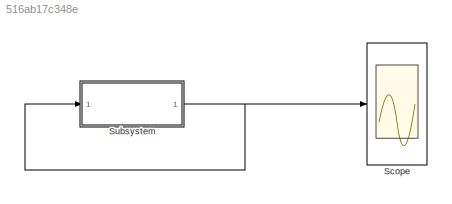
MODEL slx_516ab17c348e
KIND model
BLOCK [Scope] Scope
  Floating = off
  MaxDataPoints = 50000
  NumInputPorts = 1
  Ports = [1]
  ShowLegends = off
  ZoomMode = xonly
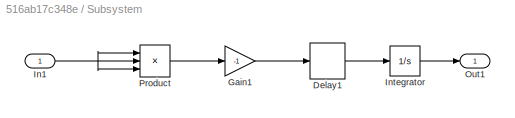
BLOCK [SubSystem] Subsystem
  Ports = [1, 1]
  RequestExecContextInheritance = off
BLOCK [Delay] Subsystem/Delay1
  DelayLength = 1
  InputPortMap = u0
  Ports = [1, 1]
  SampleTime = 0.001
BLOCK [Gain] Subsystem/Gain1
  Gain = -1
  OutDataTypeStr = Inherit: Inherit via internal rule
  ParamDataTypeStr = Inherit: Inherit via internal rule
  SaturateOnIntegerOverflow = off
BLOCK [Inport] Subsystem/In1
  IconDisplay = Port number
BLOCK [Integrator] Subsystem/Integrator
  InitialCondition = 200
  Ports = [1, 1]
BLOCK [Outport] Subsystem/Out1
  IconDisplay = Port number
BLOCK [Product] Subsystem/Product
  InputSameDT = off
  Inputs = 3
  OutDataTypeStr = Inherit: Inherit via internal rule
  Ports = [3, 1]
  RndMeth = Floor
  SaturateOnIntegerOverflow = off
LINE Subsystem/Delay1:1 -> Subsystem/Integrator:1
LINE Subsystem/Gain1:1 -> Subsystem/Delay1:1
NET Subsystem/In1:1 -> Subsystem/Product:1, Subsystem/Product:2, Subsystem/Product:3
LINE Subsystem/Integrator:1 -> Subsystem/Out1:1
LINE Subsystem/Product:1 -> Subsystem/Gain1:1
NET Subsystem:1 -> Scope:1, Subsystem:1
note: NET lines group one-source signal fan-out (src -> all destinations, sorted); 1:1 wires keep LINE
